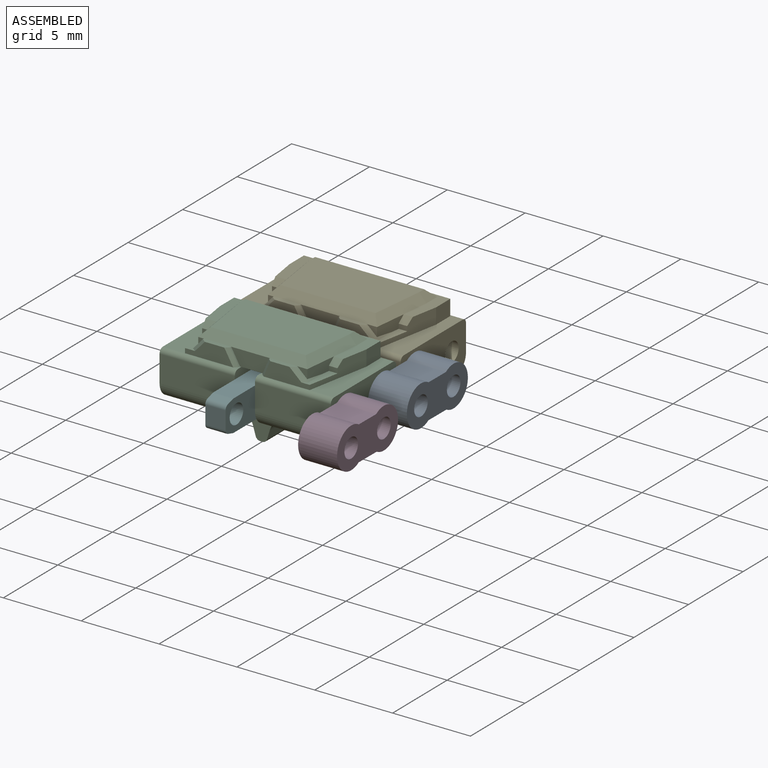
[diagram: assembled view]
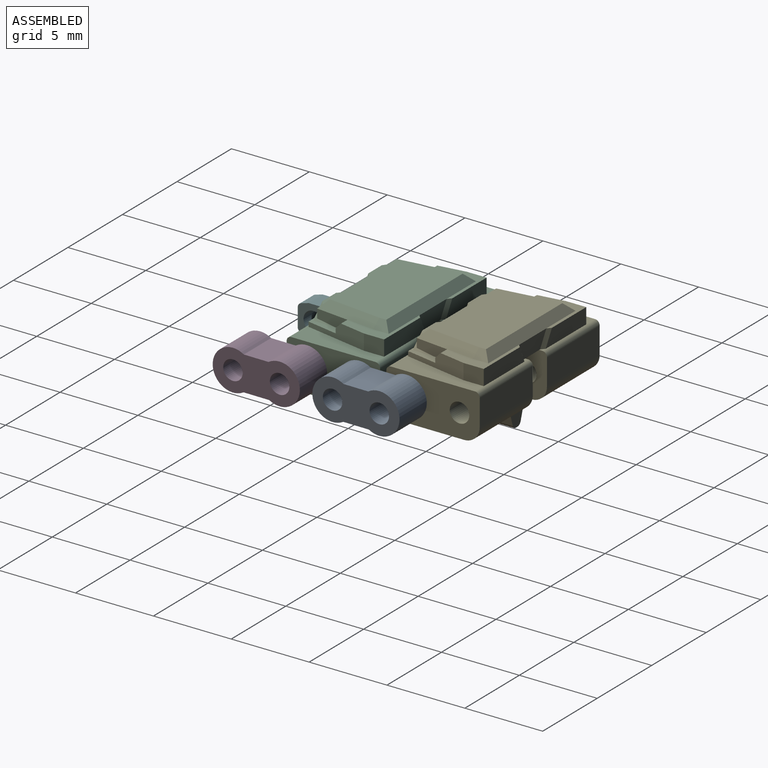
[diagram: assembled view, second angle]
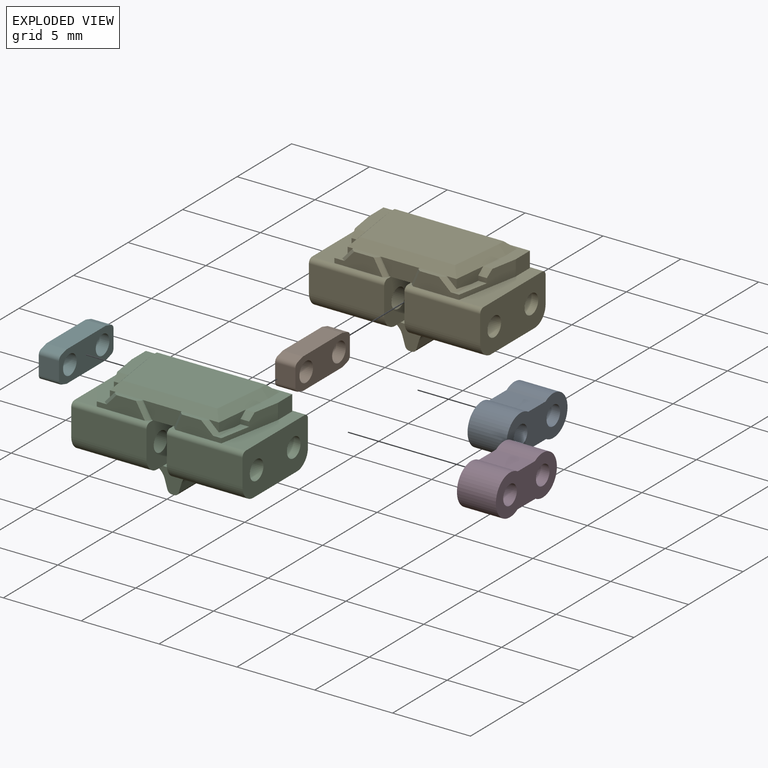
[diagram: exploded view]
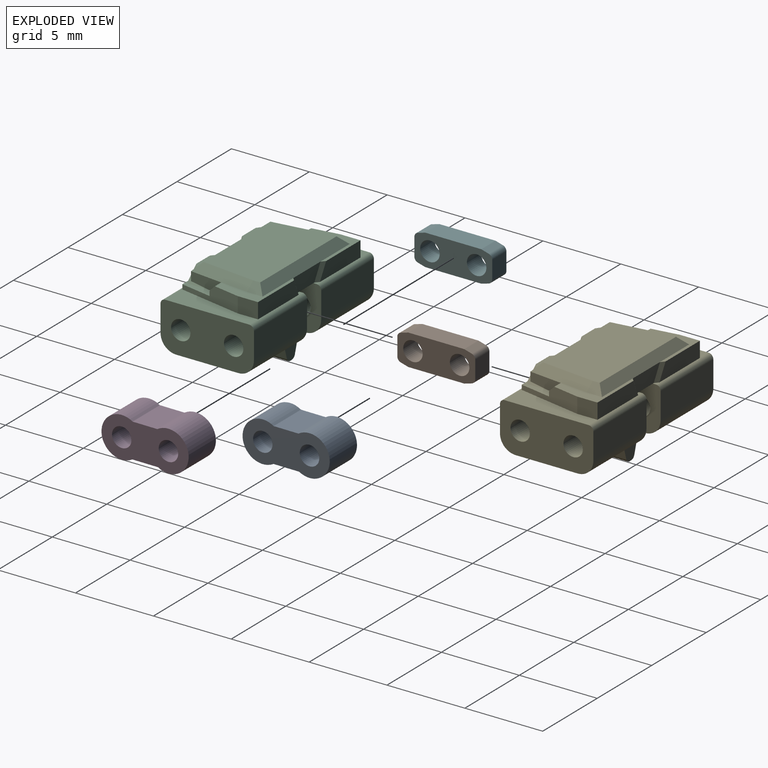
[diagram: exploded view, second angle]
ASSEMBLY  parts=6 mates=5
PART A: 8 faces, bbox 2.5x5.6x2.6 mm
  f0: cylinder r=1.3mm len=2.6mm, axis (-1,0,0), area 13.9mm2, adj f1,f3,f4,f5
  f1: plane 2.5x1.65mm, normal (0,-0.01,-1), area 4.1mm2, adj f0,f2,f4,f5
  f2: cylinder r=1.3mm len=2.6mm, axis (-1,0,0), area 13.9mm2, adj f1,f3,f4,f5
  f3: plane 2.5x1.58mm, normal (0,0.01,1), area 4mm2, adj f0,f2,f4,f5
  f4: plane 5.6x2.6mm, normal (1,0,0), area 9.8mm2, adj f0,f1,f2,f3,f6,f7
  f5: plane 5.6x2.6mm, normal (-1,0,0), area 9.8mm2, adj f0,f1,f2,f3,f6,f7
  f6: cylinder r=0.62mm len=2.5mm, axis (1,0,0), area 9.8mm2, adj f4,f5
  f7: cylinder r=0.62mm len=2.5mm, axis (1,0,0), area 9.8mm2, adj f4,f5
PART B: 16 faces, bbox 1.3x5x2 mm
  f0: plane 3.6x1.3mm, normal (0,0,1), area 4.7mm2, adj f4,f5,f6,f9
  f1: plane 1.3x1.15mm, normal (0,-1,0), area 1.5mm2, adj f4,f5,f10,f11
  f2: plane 3.6x1.3mm, normal (0,0,-1), area 4.7mm2, adj f4,f5,f7,f8
  f3: plane 1.3x1.15mm, normal (0,1,0), area 1.5mm2, adj f4,f5,f12,f13
  f4: plane 5x2mm, normal (1,0,0), area 7.2mm2, adj f0,f1,f2,f3,f6,f7,f8,f9
  f5: plane 5x2mm, normal (-1,0,0), area 7.2mm2, adj f0,f1,f2,f3,f6,f7,f8,f9
  f6: plane 1.3x0.48mm, normal (0,0.27,0.96), area 0.7mm2, adj f0,f4,f5,f12
  f7: plane 1.3x0.48mm, normal (0,0.27,-0.96), area 0.7mm2, adj f2,f4,f5,f13
  f8: plane 1.3x0.48mm, normal (0,-0.27,-0.96), area 0.7mm2, adj f2,f4,f5,f10
  f9: plane 1.3x0.48mm, normal (0,-0.27,0.96), area 0.7mm2, adj f0,f4,f5,f11
  f10: cylinder r=0.3mm len=1.3mm, axis (1,0,0), area 0.5mm2, adj f1,f4,f5,f8
  f11: cylinder r=0.3mm len=1.3mm, axis (1,0,0), area 0.5mm2, adj f1,f4,f5,f9
  f12: cylinder r=0.3mm len=1.3mm, axis (-1,0,0), area 0.5mm2, adj f3,f4,f5,f6
  f13: cylinder r=0.3mm len=1.3mm, axis (-1,0,0), area 0.5mm2, adj f3,f4,f5,f7
  f14: cylinder r=0.62mm len=1.3mm, axis (1,0,0), area 5.1mm2, adj f4,f5
  f15: cylinder r=0.62mm len=1.3mm, axis (1,0,0), area 5.1mm2, adj f4,f5
PART C: 86 faces, bbox 11x6x6 mm
  f0: plane 4.83x4mm, normal (0,0,-1), area 16.8mm2, adj f26,f52,f55,f72,f73,f82,f83,f85
  f1: plane 0.64x0.58mm, normal (0,-1,0), area 0.2mm2, adj f36,f58,f68
  f2: plane 2.5x1mm, normal (0,-1,0), area 2mm2, adj f5,f6,f40,f41,f60,f68
  f3: plane 0.31x0.2mm, normal (0,0,1), area 0mm2, adj f9,f43,f55,f62
  f4: plane 0.34x0.2mm, normal (0,0,1), area 0mm2, adj f33,f42,f56,f62
  f5: plane 0.34x0.3mm, normal (0,0,1), area 0.1mm2, adj f2,f32,f41,f45,f53
  f6: plane 0.31x0.3mm, normal (0,0,1), area 0mm2, adj f2,f12,f40,f46,f52
  f7: plane 4.87x4mm, normal (0,0,-1), area 16.9mm2, adj f28,f53,f56,f72,f73,f80,f81,f84
  f8: plane 4.83x1.7mm, normal (0,1,0), area 8.2mm2, adj f9,f26,f55,f83
  f9: cylinder r=0.3mm len=4.83mm, axis (1,0,0), area 2.3mm2, adj f3,f8,f17,f23,f26,f55
  f10: cylinder r=0.62mm len=4.83mm, axis (-1,0,0), area 19mm2, adj f26,f55
  f11: plane 4.83x1.7mm, normal (0,-1,0), area 8.2mm2, adj f12,f26,f52,f82
  f12: cylinder r=0.3mm len=4.83mm, axis (-1,0,0), area 2.3mm2, adj f6,f11,f14,f23,f26,f52
  f13: cylinder r=0.62mm len=4.83mm, axis (-1,0,0), area 19mm2, adj f26,f52
  f14: plane 3.09x1mm, normal (0,-1,0), area 2.1mm2, adj f12,f18,f21,f38,f46,f47
  f15: plane 1.75x0.3mm, normal (0,0,1), area 0.5mm2, adj f19,f36,f41,f44,f45,f68
  f16: plane 3.52x2.99mm, normal (0,0,1), area 2.5mm2, adj f20,f29,f31,f42,f48,f65,f66,f67
  f17: plane 3.72x1mm, normal (0,1,0), area 3.4mm2, adj f9,f22,f30,f43
  f18: plane 4.1x1mm, normal (-0.99,-0.15,0), area 2.6mm2, adj f14,f22,f23,f30,f38,f39,f49
  f19: plane 2.96x1mm, normal (0,-1,0), area 2.1mm2, adj f15,f20,f32,f35,f44,f45
  f20: plane 4.1x1mm, normal (0.98,-0.18,0), area 2.7mm2, adj f16,f19,f24,f31,f34,f35,f48
  f21: plane 1.75x0.3mm, normal (0,0,1), area 0.5mm2, adj f14,f37,f40,f46,f47,f68
  f22: plane 3.38x2.99mm, normal (0,0,1), area 2.6mm2, adj f17,f18,f30,f43,f49,f67,f69,f70
  f23: plane 5.4x1.43mm, normal (0,0,1), area 5.6mm2, adj f9,f12,f18,f26,f30
  f24: plane 5.4x1.57mm, normal (0,0,1), area 5.9mm2, adj f20,f28,f31,f32,f33
  f25: plane 4.87x1.7mm, normal (0,1,0), area 8.3mm2, adj f28,f33,f56,f80
  f26: plane 6x3mm, normal (-1,0,0), area 15.1mm2, adj f0,f8,f9,f10,f11,f12,f13,f23
  f27: plane 4.87x1.7mm, normal (0,-1,0), area 8.3mm2, adj f28,f32,f53,f81
  f28: plane 6x3mm, normal (1,0,0), area 15.1mm2, adj f7,f24,f25,f27,f32,f33,f50,f51
  f29: plane 3.73x1mm, normal (0,1,0), area 3.5mm2, adj f16,f31,f33,f42
  f30: plane 1.3x1mm, normal (-1,0,0), area 1.3mm2, adj f17,f18,f22,f23
  f31: plane 1.3x1mm, normal (1,0,0), area 1.3mm2, adj f16,f20,f24,f29
  f32: cylinder r=0.3mm len=4.87mm, axis (-1,0,0), area 2.3mm2, adj f5,f19,f24,f27,f28,f53
  f33: cylinder r=0.3mm len=4.87mm, axis (1,0,0), area 2.3mm2, adj f4,f24,f25,f28,f29,f56
  f34: plane 0.55x0.3mm, normal (0,-1,0), area 0.2mm2, adj f20,f35,f48,f58
  f35: plane 2.01x0.91mm, normal (0,0,1), area 0.9mm2, adj f19,f20,f34,f36,f44,f58
  f36: plane 1.32x0.77mm, normal (0.67,0,0.74), area 0.2mm2, adj f1,f15,f35,f44,f58
  f37: plane 1.81x0.7mm, normal (-0.74,0,0.67), area 0.5mm2, adj f21,f38,f39,f47,f59,f63
  f38: plane 2.01x0.95mm, normal (0,0,1), area 1.1mm2, adj f14,f18,f37,f39,f47
  f39: plane 0.7x0.3mm, normal (0,-1,0), area 0.2mm2, adj f18,f37,f38,f49,f59
  f40: plane 1x0.57mm, normal (0.87,0,0.5), area 0.1mm2, adj f2,f6,f21,f46
  f41: plane 1x0.43mm, normal (-0.92,0,0.39), area 0.1mm2, adj f2,f5,f15,f45
  f42: plane 1x0.65mm, normal (-0.65,0.71,0.28), area 0.3mm2, adj f4,f16,f29,f62
  f43: plane 1x0.8mm, normal (0.61,0.71,0.35), area 0.3mm2, adj f3,f17,f22,f62
  f44: plane 1.07x0.7mm, normal (0.48,-0.71,0.52), area 0.3mm2, adj f15,f19,f35,f36
  f45: plane 1x0.65mm, normal (-0.65,-0.71,0.28), area 0.3mm2, adj f5,f15,f19,f41
  f46: plane 1x0.8mm, normal (0.61,-0.71,0.35), area 0.3mm2, adj f6,f14,f21,f40
  f47: plane 0.9x0.7mm, normal (-0.53,-0.71,0.47), area 0.3mm2, adj f14,f21,f37,f38
  f48: plane 0.63x0.4mm, normal (0,-0.71,0.71), area 0.3mm2, adj f16,f20,f34,f58
  f49: plane 0.76x0.4mm, normal (0,-0.71,0.71), area 0.4mm2, adj f18,f22,f39,f59
  f50: cylinder r=0.62mm len=4.87mm, axis (-1,0,0), area 19.1mm2, adj f28,f53
  f51: cylinder r=0.62mm len=4.87mm, axis (-1,0,0), area 19.1mm2, adj f28,f56
  f52: plane 3x2.31mm, normal (1,0,0), area 5.5mm2, adj f0,f6,f11,f12,f13,f54,f60,f71
  f53: plane 3x2.31mm, normal (-1,0,0), area 5.5mm2, adj f5,f7,f27,f32,f50,f54,f60,f71
  f54: plane 3x1.3mm, normal (0,-1,0), area 3.9mm2, adj f52,f53,f60,f71
  f55: plane 3x2.39mm, normal (1,0,0), area 5.7mm2, adj f0,f3,f8,f9,f10,f57,f61,f75
  f56: plane 3x2.39mm, normal (-1,0,0), area 5.7mm2, adj f4,f7,f25,f33,f51,f57,f61,f75
  f57: plane 3x1.3mm, normal (0,1,0), area 3.9mm2, adj f55,f56,f61,f75
  f58: plane 2.11x0.7mm, normal (0.99,-0.11,0), area 1.2mm2, adj f1,f34,f35,f36,f48,f66
  f59: plane 2.11x0.68mm, normal (-0.99,-0.14,0), area 1mm2, adj f37,f39,f49,f63,f70
  f60: plane 1.71x1.3mm, normal (0,0,-1), area 2.2mm2, adj f2,f52,f53,f54
  f61: plane 1.89x1.3mm, normal (0,0,-1), area 2.5mm2, adj f55,f56,f57,f62
  f62: plane 2.5x1mm, normal (0,1,0), area 2mm2, adj f3,f4,f42,f43,f61,f67
  f63: plane 0.41x0.37mm, normal (0,-1,0), area 0.1mm2, adj f37,f59,f68
  f64: plane 7.01x3.9mm, normal (0,0,1), area 25.8mm2, adj f65,f66,f67,f68,f69,f70
  f65: plane 1x0.5mm, normal (0.71,0,0.71), area 0.5mm2, adj f16,f64,f66,f67
  f66: plane 3.96x0.89mm, normal (0.7,-0.08,0.71), area 2.6mm2, adj f16,f58,f64,f65,f68
  f67: plane 8x0.5mm, normal (0,0.71,0.71), area 5.3mm2, adj f16,f22,f62,f64,f65,f69
  f68: plane 7x0.5mm, normal (0,-0.71,0.71), area 4.6mm2, adj f1,f2,f15,f21,f63,f64,f66,f70
  f69: plane 1.01x0.51mm, normal (-0.71,0,0.71), area 0.5mm2, adj f22,f64,f67,f70
  f70: plane 3.98x1mm, normal (-0.7,-0.1,0.71), area 2.6mm2, adj f22,f59,f64,f68,f69
  f71: plane 1.3x0.8mm, normal (0,0,1), area 1mm2, adj f52,f53,f54,f73
  f72: plane 2.99x1.5mm, normal (0,1,0), area 1.8mm2, adj f0,f7,f74,f75,f76,f77,f78,f79
  f73: plane 2.99x1.5mm, normal (0,-1,0), area 1.8mm2, adj f0,f7,f71,f74,f76,f77,f78,f79
  f74: plane 3x0.15mm, normal (0,0,-1), area 0.5mm2, adj f72,f73,f78,f79
  f75: plane 1.3x0.9mm, normal (0,0,1), area 1.2mm2, adj f55,f56,f57,f72
  f76: plane 3x0.57mm, normal (-0.96,0,-0.29), area 1.8mm2, adj f72,f73,f78,f85
  f77: plane 3x0.57mm, normal (0.96,0,-0.29), area 1.8mm2, adj f72,f73,f79,f84
  f78: cylinder r=0.3mm len=3mm, axis (0,-1,0), area 1.2mm2, adj f72,f73,f74,f76
  f79: cylinder r=0.3mm len=3mm, axis (0,-1,0), area 1.2mm2, adj f72,f73,f74,f77
  f80: cylinder r=1mm len=4.87mm, axis (-1,0,0), area 7.6mm2, adj f7,f25,f28,f56
  f81: cylinder r=1mm len=4.87mm, axis (1,0,0), area 7.6mm2, adj f7,f27,f28,f53
  f82: cylinder r=1mm len=4.83mm, axis (1,0,0), area 7.6mm2, adj f0,f11,f26,f52
  f83: cylinder r=1mm len=4.83mm, axis (-1,0,0), area 7.6mm2, adj f0,f8,f26,f55
  f84: cylinder r=1mm len=3mm, axis (0,1,0), area 3.8mm2, adj f7,f72,f73,f77
  f85: cylinder r=1mm len=3mm, axis (0,1,0), area 3.8mm2, adj f0,f72,f73,f76
PART D: same geometry as A
PART E: same geometry as C
PART F: same geometry as B
PLACE A t=(5.87,4.21,-0.63)mm
PLACE B t=(-0.3,0.35,-0.28)mm
PLACE C t=(-3.85,-1.03,-2.13)mm
PLACE D t=(5.87,-2.19,-0.63)mm
PLACE E t=(-3.85,5.37,-2.13)mm
PLACE F t=(-0.3,-6.05,-0.28)mm
MATE fastened D.f6 <-> C.f13  axis (-1,0,0) through (5.87,-2.04,-0.63)mm
MATE fastened A.f0 <-> C.f10  axis (1,0,0) through (5.87,1.36,-0.63)mm
MATE fastened E.f13 <-> A.f6  axis (1,0,0) through (5.87,4.36,-0.63)mm
MATE fastened F.f14 <-> C.f13  axis (1,0,0) through (-0.3,-2.04,-0.63)mm
MATE fastened B.f14 <-> E.f13  axis (1,0,0) through (-0.3,4.36,-0.63)mm
